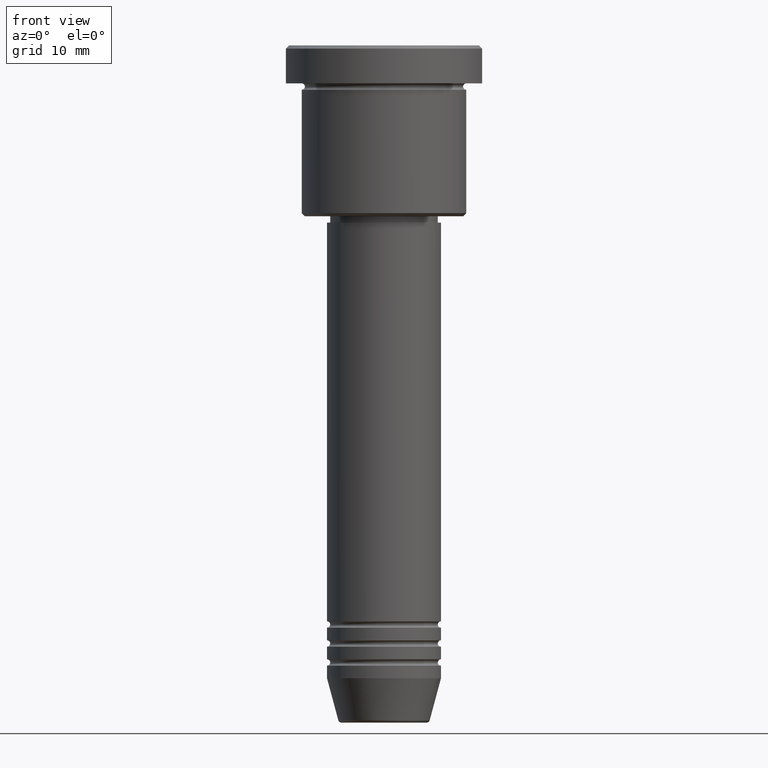
[diagram: clean part render]
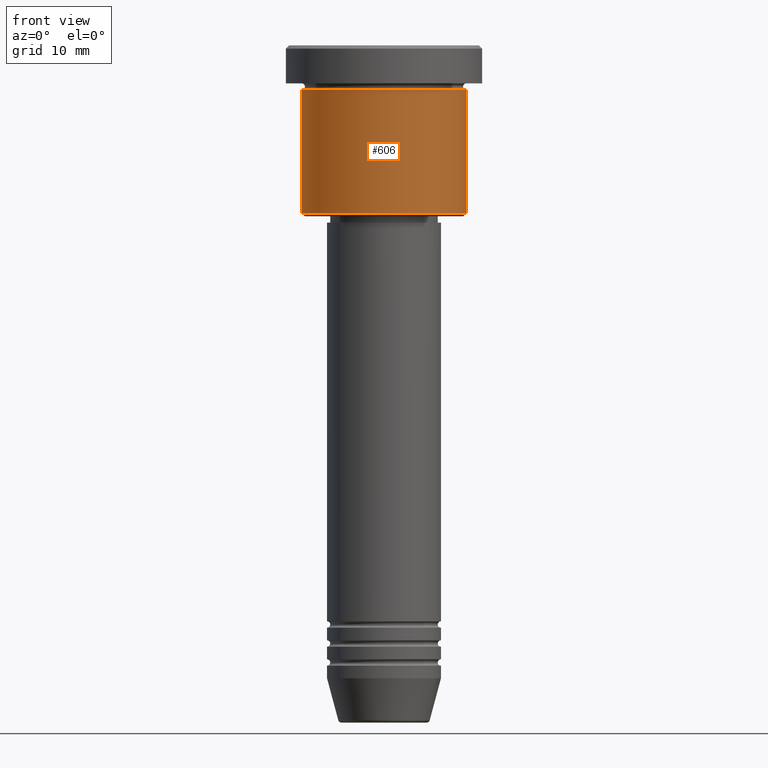
[diagram: same view with one face highlighted and labeled with its STEP entity id]
A machine part, front view. The second image highlights one B-rep face of the part: STEP entity #606.
In plain terms, the highlighted cylindrical surface (partial cylindrical patch) has radius 13 mm, axis along (-0, -0, 1).
Its self-contained STEP definition (entity closure, byte-faithful):
#43 = EDGE_CURVE ( 'NONE', #65, #901, #1038, .T. ) ;
#65 = VERTEX_POINT ( 'NONE', #627 ) ;
#81 = EDGE_LOOP ( 'NONE', ( #156, #688, #441, #921 ) ) ;
#138 = DIRECTION ( 'NONE',  ( -0.000000000000000000, -0.000000000000000000, 1.000000000000000000 ) ) ;
#156 = ORIENTED_EDGE ( 'NONE', *, *, #413, .F. ) ;
#180 = DIRECTION ( 'NONE',  ( 1.000000000000000000, 0.000000000000000000, 0.000000000000000000 ) ) ;
#185 = DIRECTION ( 'NONE',  ( -1.000000000000000000, 0.000000000000000000, 0.000000000000000000 ) ) ;
#226 = LINE ( 'NONE', #587, #549 ) ;
#275 = CARTESIAN_POINT ( 'NONE',  ( 0.000000000000000000, 0.000000000000000000, 0.000000000000000000 ) ) ;
#277 = CARTESIAN_POINT ( 'NONE',  ( 0.000000000000000000, 0.000000000000000000, -6.999999999999995559 ) ) ;
#315 = AXIS2_PLACEMENT_3D ( 'NONE', #275, #998, #180 ) ;
#323 = CARTESIAN_POINT ( 'NONE',  ( -13.00000000000000000, 1.592040838891559095E-15, 0.000000000000000000 ) ) ;
#368 = VERTEX_POINT ( 'NONE', #495 ) ;
#413 = EDGE_CURVE ( 'NONE', #368, #65, #578, .T. ) ;
#433 = CARTESIAN_POINT ( 'NONE',  ( 13.00000000000000000, 0.000000000000000000, -26.49999999999998934 ) ) ;
#441 = ORIENTED_EDGE ( 'NONE', *, *, #456, .T. ) ;
#456 = EDGE_CURVE ( 'NONE', #744, #901, #226, .T. ) ;
#495 = CARTESIAN_POINT ( 'NONE',  ( -13.00000000000000000, 1.592040838891559095E-15, -26.49999999999998934 ) ) ;
#523 = DIRECTION ( 'NONE',  ( 1.000000000000000000, 0.000000000000000000, 0.000000000000000000 ) ) ;
#525 = AXIS2_PLACEMENT_3D ( 'NONE', #277, #640, #523 ) ;
#549 = VECTOR ( 'NONE', #138, 1000.000000000000000 ) ;
#578 = LINE ( 'NONE', #323, #778 ) ;
#584 = AXIS2_PLACEMENT_3D ( 'NONE', #908, #638, #185 ) ;
#587 = CARTESIAN_POINT ( 'NONE',  ( 13.00000000000000000, 0.000000000000000000, 0.000000000000000000 ) ) ;
#606 = ADVANCED_FACE ( 'NONE', ( #633 ), #1095, .T. ) ;
#620 = EDGE_CURVE ( 'NONE', #368, #744, #1106, .T. ) ;
#627 = CARTESIAN_POINT ( 'NONE',  ( -13.00000000000000000, 1.592040838891559095E-15, -6.999999999999995559 ) ) ;
#633 = FACE_OUTER_BOUND ( 'NONE', #81, .T. ) ;
#638 = DIRECTION ( 'NONE',  ( -0.000000000000000000, -0.000000000000000000, 1.000000000000000000 ) ) ;
#640 = DIRECTION ( 'NONE',  ( -0.000000000000000000, -0.000000000000000000, 1.000000000000000000 ) ) ;
#688 = ORIENTED_EDGE ( 'NONE', *, *, #620, .T. ) ;
#744 = VERTEX_POINT ( 'NONE', #433 ) ;
#778 = VECTOR ( 'NONE', #959, 1000.000000000000000 ) ;
#901 = VERTEX_POINT ( 'NONE', #939 ) ;
#908 = CARTESIAN_POINT ( 'NONE',  ( 0.000000000000000000, 0.000000000000000000, -26.49999999999998934 ) ) ;
#921 = ORIENTED_EDGE ( 'NONE', *, *, #43, .F. ) ;
#939 = CARTESIAN_POINT ( 'NONE',  ( 13.00000000000000000, 0.000000000000000000, -6.999999999999995559 ) ) ;
#959 = DIRECTION ( 'NONE',  ( -0.000000000000000000, -0.000000000000000000, 1.000000000000000000 ) ) ;
#998 = DIRECTION ( 'NONE',  ( -0.000000000000000000, -0.000000000000000000, 1.000000000000000000 ) ) ;
#1038 = CIRCLE ( 'NONE', #525, 13.00000000000000000 ) ;
#1095 = CYLINDRICAL_SURFACE ( 'NONE', #315, 13.00000000000000000 ) ;
#1106 = CIRCLE ( 'NONE', #584, 13.00000000000000000 ) ;